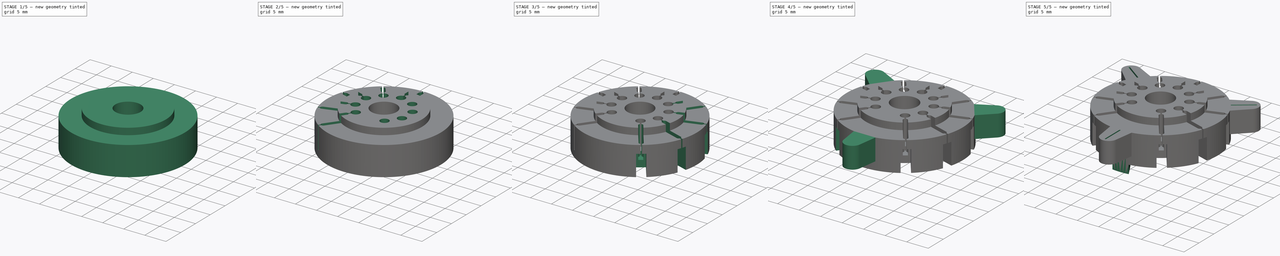
[diagram: build sequence overview — one tinted view per stage of 5, left to right]
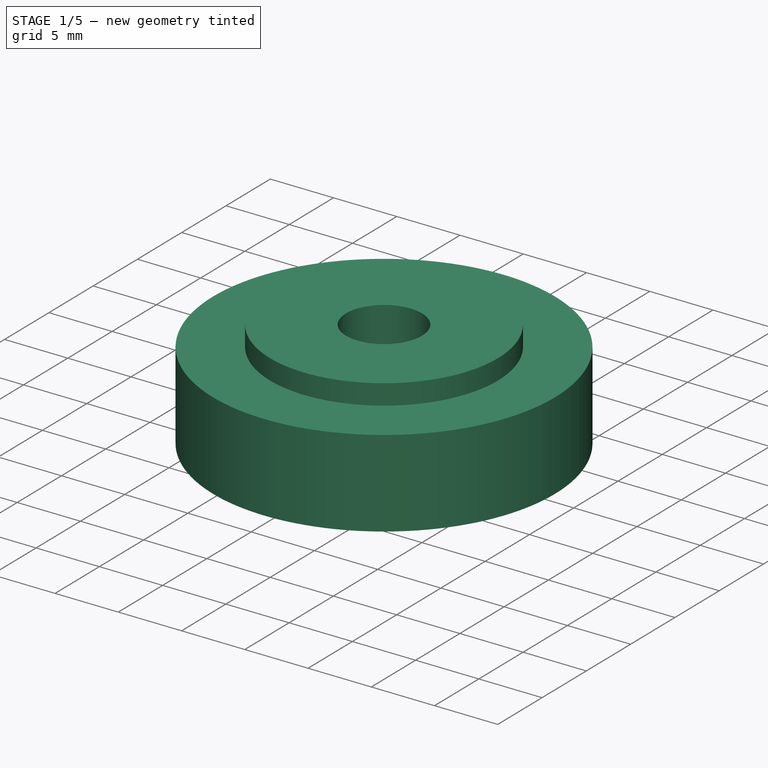
[diagram: stage 1 of 5 — iso view after this stage's code; geometry added in this stage tinted green]
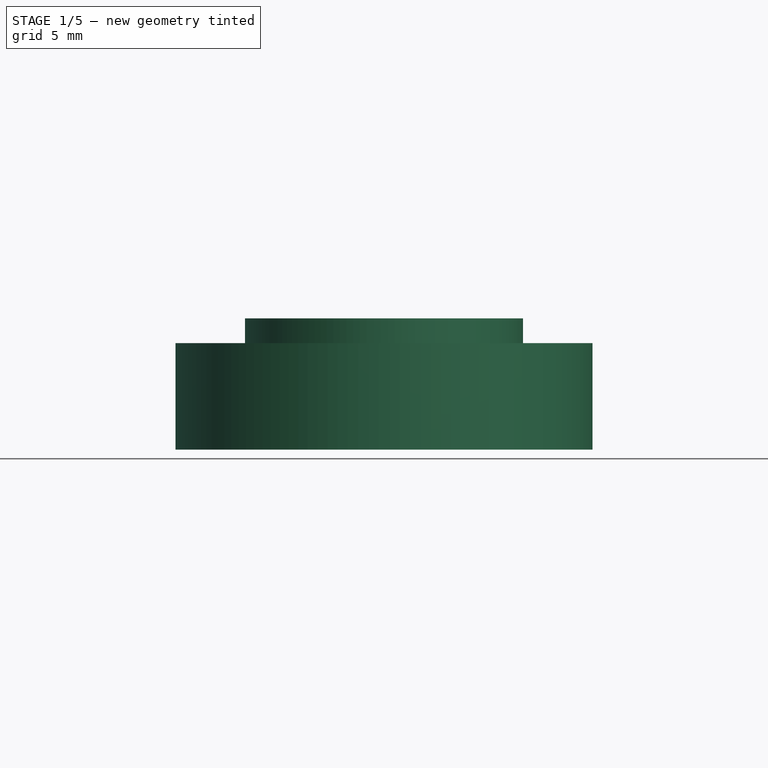
[diagram: stage 1 of 5 — front view after this stage's code; geometry added in this stage tinted green]
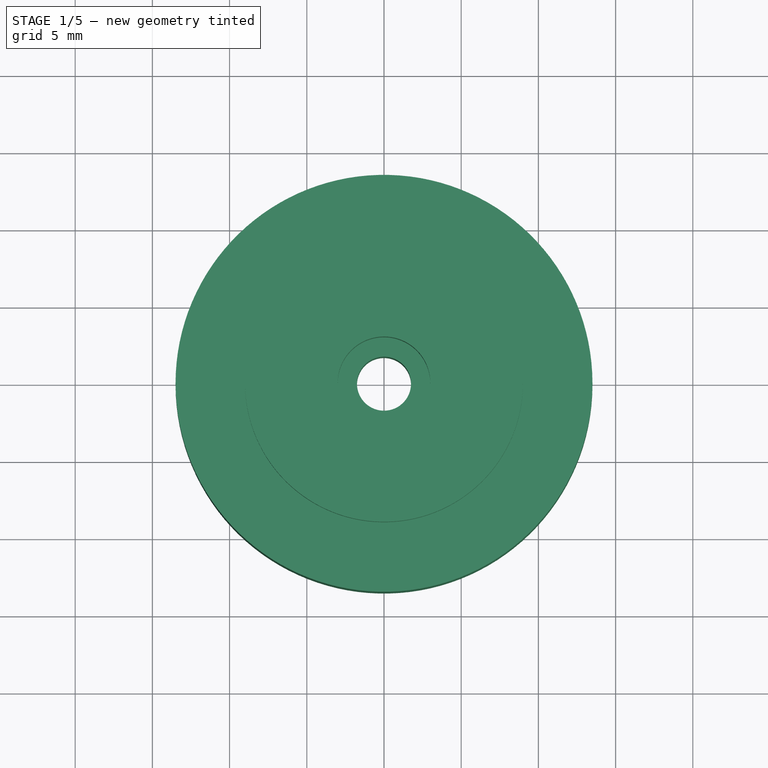
[diagram: stage 1 of 5 — top view after this stage's code; geometry added in this stage tinted green]
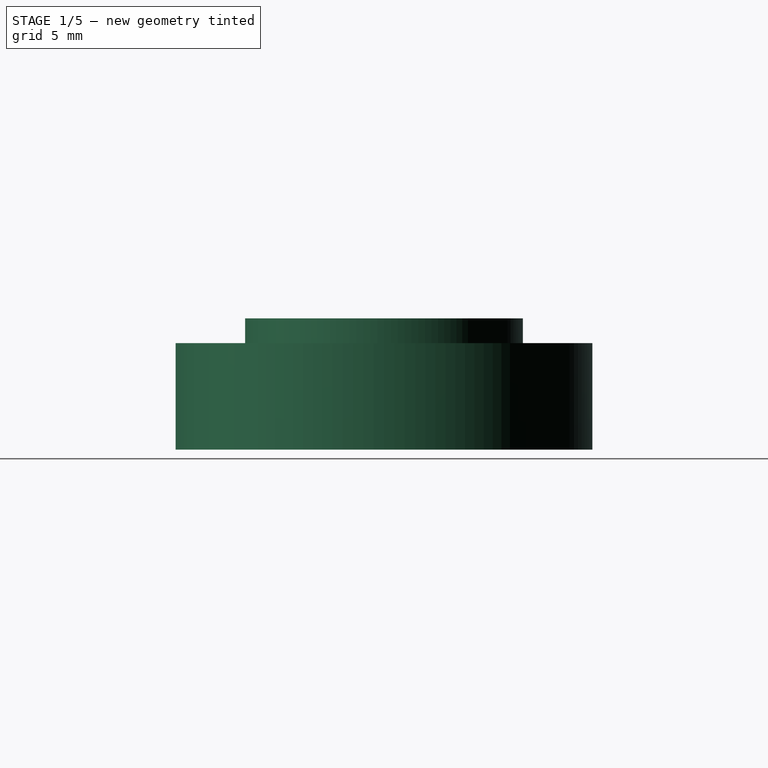
[diagram: stage 1 of 5 — right view after this stage's code; geometry added in this stage tinted green]
FCSTD DOCUMENT  (FreeCAD 0.19R24276 (Git))
Label: VT9-RT-2
License: All rights reserved
LicenseURL: http://en.wikipedia.org/wiki/All_rights_reserved
objects: Sketcher::SketchObject×11, PartDesign::PolarPattern×8, PartDesign::Pocket×7, PartDesign::Pad×4, PartDesign::Body×1
note: 42 computed .brp shape members not serialized (recipe doc carries the construction recipe); baked Part::Feature solids carry a one-line shape summary decoded from their .brp

FEATURE [Sketcher::SketchObject] Sketch
  FullyConstrained = true
  MapMode = 5
  Support = -> [XY_Plane]
  sketch-geometry (1):
    g0: Circle CenterX=0 CenterY=0 CenterZ=0 NormalX=0 NormalY=0 NormalZ=1 AngleXU=0 Radius=9
  constraints (2):
    c: Coincident(g0,g-1)
    c: Radius(g0) = 9
FEATURE [PartDesign::Pad] Pad
  Direction = (1,1,1)
  Length = 1.6
  Length2 = 99.9998
  Profile = -> Sketch
  Refine = true
  Type = 0
FEATURE [Sketcher::SketchObject] Sketch001
  FullyConstrained = true
  MapMode = 5
  Placement = pos=(0,0,0) rot=(1,0,0;3.14159rad)
  Support = -> [Pad]
  sketch-geometry (1):
    g0: Circle CenterX=0 CenterY=0 CenterZ=0 NormalX=0 NormalY=0 NormalZ=1 AngleXU=0 Radius=13.5
  constraints (2):
    c: Coincident(g0,g-1)
    c: Radius(g0) = 13.5
FEATURE [PartDesign::Pad] Pad001
  BaseFeature = -> Pad
  Direction = (1,1,1)
  Length = 6.9
  Length2 = 99.9998
  Profile = -> Sketch001
  Refine = true
  Type = 0
FEATURE [Sketcher::SketchObject] Sketch002
  FullyConstrained = true
  MapMode = 5
  Placement = pos=(0,0,1.6) rot=(0,0,1;0rad)
  Support = -> [Pad001]
  sketch-geometry (1):
    g0: Circle CenterX=0 CenterY=0 CenterZ=0 NormalX=0 NormalY=0 NormalZ=1 AngleXU=0 Radius=3
  constraints (2):
    c: Coincident(g0,g-1)
    c: Radius(g0) = 3
FEATURE [PartDesign::Pocket] Pocket
  BaseFeature = -> Pad001
  Length = 3
  Length2 = 99.9998
  Profile = -> Sketch002
  Refine = true
  Type = 0
FEATURE [Sketcher::SketchObject] Sketch003
  FullyConstrained = true
  MapMode = 5
  Support = -> [XY_Plane]
  sketch-geometry (1):
    g0: Circle CenterX=0 CenterY=0 CenterZ=0 NormalX=0 NormalY=0 NormalZ=1 AngleXU=0 Radius=1.75
  constraints (2):
    c: Coincident(g0,g-1)
    c: Radius(g0) = 1.75
FEATURE [PartDesign::Pocket] Pocket001
  BaseFeature = -> Pocket
  Length = 5.0038
  Length2 = 99.9998
  Profile = -> Sketch003
  Refine = true
  Type = 1
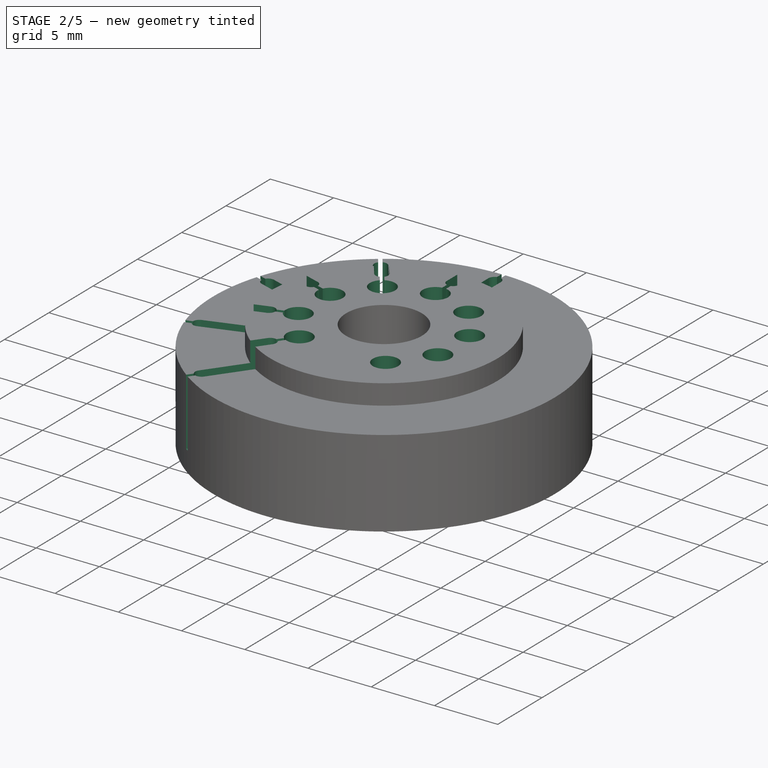
[diagram: stage 2 of 5 — iso view after this stage's code; geometry added in this stage tinted green]
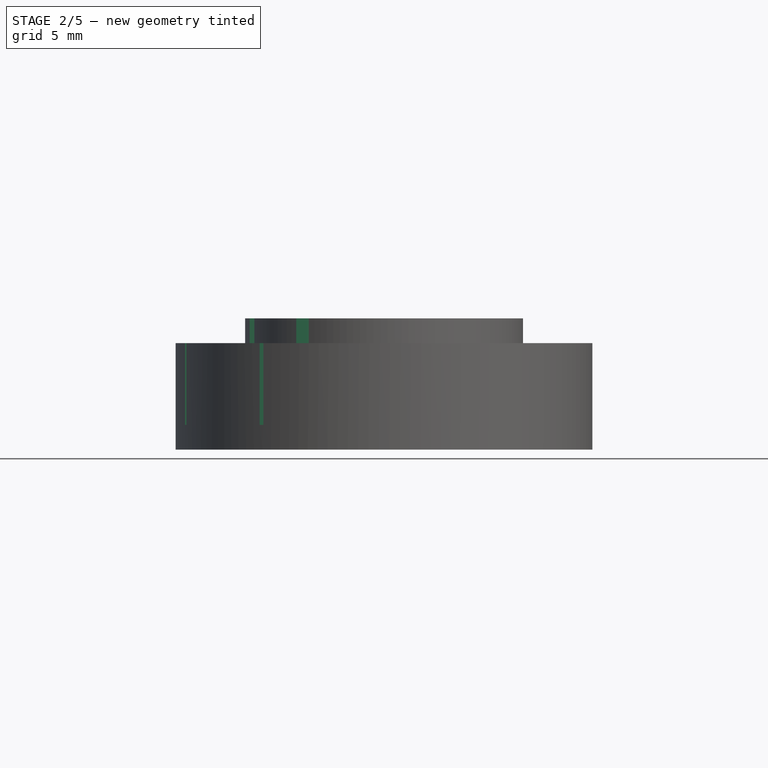
[diagram: stage 2 of 5 — front view after this stage's code; geometry added in this stage tinted green]
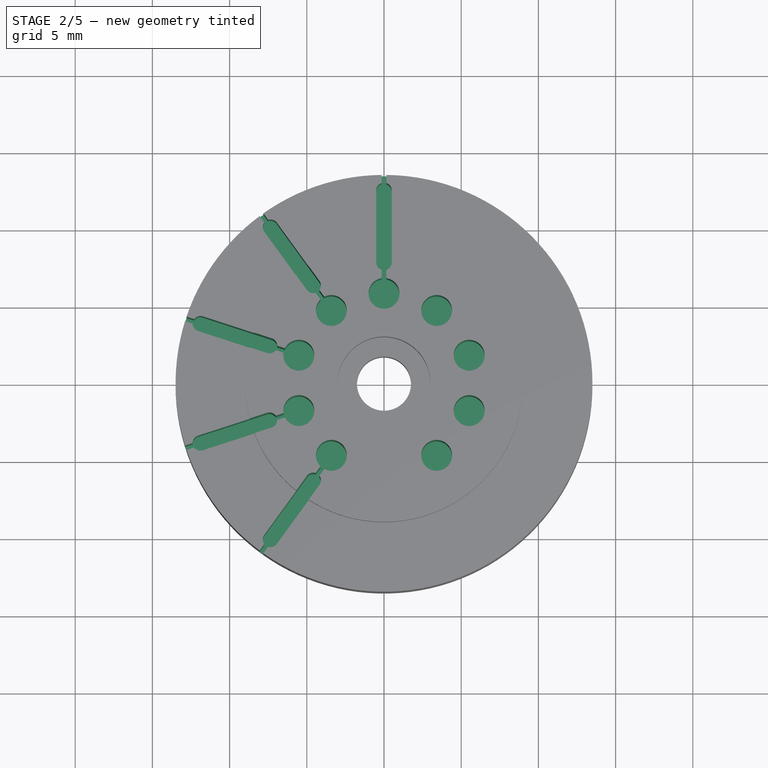
[diagram: stage 2 of 5 — top view after this stage's code; geometry added in this stage tinted green]
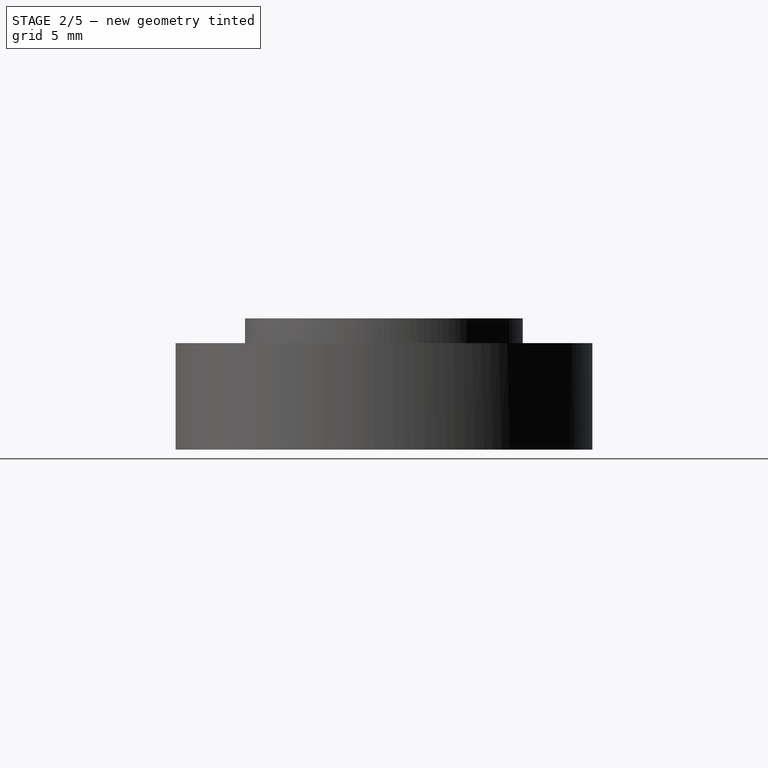
[diagram: stage 2 of 5 — right view after this stage's code; geometry added in this stage tinted green]
FEATURE [Sketcher::SketchObject] Sketch004
  FullyConstrained = true
  MapMode = 5
  Placement = pos=(0,0,-6.9) rot=(1,0,0;3.14159rad)
  Support = -> [Pocket001]
  sketch-geometry (1):
    g0: Circle CenterX=0 CenterY=0 CenterZ=0 NormalX=0 NormalY=0 NormalZ=1 AngleXU=0 Radius=3
  constraints (2):
    c: Coincident(g0,g-1)
    c: Radius(g0) = 3
FEATURE [PartDesign::Pocket] Pocket002
  BaseFeature = -> Pocket001
  Length = 1.6
  Length2 = 99.9998
  Profile = -> Sketch004
  Refine = true
  Type = 0
FEATURE [Sketcher::SketchObject] Sketch005
  FullyConstrained = true
  MapMode = 5
  Placement = pos=(0,0,1.6) rot=(0,0,1;0rad)
  Support = -> [Pad001]
  sketch-geometry (27):
    g0: Circle CenterX=0 CenterY=0 CenterZ=0 NormalX=0 NormalY=0 NormalZ=1 AngleXU=0 Radius=5.8
    g1: LineSegment StartX=0 StartY=0 StartZ=0 EndX=-3.40915 EndY=-4.6923 EndZ=0
    g2: LineSegment StartX=0 StartY=0 StartZ=0 EndX=-5.51613 EndY=-1.7923 EndZ=0
    g3: LineSegment StartX=-3.40915 StartY=-4.6923 StartZ=0 EndX=3.40915 EndY=-4.6923 EndZ=0
    g4: LineSegment StartX=3.40915 StartY=-4.6923 StartZ=0 EndX=5.51613 EndY=1.7923 EndZ=0
    g5: LineSegment StartX=5.51613 StartY=1.7923 StartZ=0 EndX=1.8e-15 EndY=5.8 EndZ=0
    g6: LineSegment StartX=1.8e-15 StartY=5.8 StartZ=0 EndX=-5.51613 EndY=1.7923 EndZ=0
    g7: LineSegment StartX=-5.51613 StartY=1.7923 StartZ=0 EndX=-3.40915 EndY=-4.6923 EndZ=0
    g8: Circle CenterX=0 CenterY=0 CenterZ=0 NormalX=0 NormalY=0 NormalZ=1 AngleXU=0 Radius=5.8
    g9: LineSegment StartX=-5.51613 StartY=-1.7923 StartZ=0 EndX=-2.7e-15 EndY=-5.8 EndZ=0
    g10: LineSegment StartX=-2.7e-15 StartY=-5.8 StartZ=0 EndX=5.51613 EndY=-1.7923 EndZ=0
    g11: LineSegment StartX=5.51613 StartY=-1.7923 StartZ=0 EndX=3.40915 EndY=4.6923 EndZ=0
    g12: LineSegment StartX=3.40915 StartY=4.6923 StartZ=0 EndX=-3.40915 EndY=4.6923 EndZ=0
    g13: LineSegment StartX=-3.40915 StartY=4.6923 StartZ=0 EndX=-5.51613 EndY=-1.7923 EndZ=0
    g14: Circle CenterX=0 CenterY=0 CenterZ=0 NormalX=0 NormalY=0 NormalZ=1 AngleXU=0 Radius=5.8
    g15: Circle CenterX=-3.40915 CenterY=-4.6923 CenterZ=0 NormalX=0 NormalY=0 NormalZ=1 AngleXU=0 Radius=1
    g16: Circle CenterX=-5.51613 CenterY=-1.7923 CenterZ=0 NormalX=0 NormalY=0 NormalZ=1 AngleXU=0 Radius=1
    g17: Circle CenterX=-5.51613 CenterY=1.7923 CenterZ=0 NormalX=0 NormalY=0 NormalZ=1 AngleXU=0 Radius=1
    g18: Circle CenterX=-3.40915 CenterY=4.6923 CenterZ=0 NormalX=0 NormalY=0 NormalZ=1 AngleXU=0 Radius=1
    g19: Circle CenterX=1.8e-15 CenterY=5.8 CenterZ=0 NormalX=0 NormalY=0 NormalZ=1 AngleXU=0 Radius=1
    g20: Circle CenterX=3.40915 CenterY=4.6923 CenterZ=0 NormalX=0 NormalY=0 NormalZ=1 AngleXU=0 Radius=1
    g21: Circle CenterX=5.51613 CenterY=1.7923 CenterZ=0 NormalX=0 NormalY=0 NormalZ=1 AngleXU=0 Radius=1
    g22: Circle CenterX=5.51613 CenterY=-1.7923 CenterZ=0 NormalX=0 NormalY=0 NormalZ=1 AngleXU=0 Radius=1
    g23: Circle CenterX=3.40915 CenterY=-4.6923 CenterZ=0 NormalX=0 NormalY=0 NormalZ=1 AngleXU=0 Radius=1
    g24: Circle CenterX=0 CenterY=0 CenterZ=0 NormalX=0 NormalY=0 NormalZ=1 AngleXU=0 Radius=13.5
    g25: LineSegment StartX=-3.40915 StartY=-4.6923 StartZ=0 EndX=-7.9351 EndY=-10.9217 EndZ=0
    g26: Circle CenterX=0 CenterY=0 CenterZ=0 NormalX=0 NormalY=0 NormalZ=1 AngleXU=0 Radius=13
  constraints (59):
    c: Coincident(g0,g-1)
    c: Radius(g0) = 5.8
    c: Coincident(g1,g-1)
    c: PointOnObject(g1,g0)
    c: Angle(g-2,g1) = 2.51327
    c: Coincident(g2,g-1)
    c: PointOnObject(g2,g0)
    c: Angle(g2,g1) = 0.628319
    c: Coincident(g3,g4)
    c: Coincident(g4,g5)
    c: Coincident(g5,g6)
    c: Coincident(g6,g7)
    c: Coincident(g7,g3)
    c: Equal(g3, g4-g7) x4
    c: PointOnObject(g3,g8)
    c: PointOnObject(g4,g8)
    c: PointOnObject(g5,g8)
    c: PointOnObject(g6,g8)
    c: PointOnObject(g7,g8)
    c: Coincident(g8,g-1)
    c: Coincident(g7,g1)
    c: Coincident(g9,g10)
    c: Coincident(g10,g11)
    c: Coincident(g11,g12)
    c: Coincident(g12,g13)
    c: Coincident(g13,g9)
    c: Equal(g9, g10-g13) x4
    c: PointOnObject(g9,g14)
    c: PointOnObject(g10,g14)
    c: PointOnObject(g11,g14)
    c: PointOnObject(g12,g14)
    c: PointOnObject(g13,g14)
    c: Coincident(g14,g-1)
    c: Coincident(g13,g2)
    c: Coincident(g15,g1)
    c: Radius(g15) = 1
    c: Equal(g15,g16) = 2
    c: Coincident(g16,g2)
    c: Equal(g15,g17) = 2
    c: Coincident(g17,g6)
    c: Equal(g15,g18) = 2
    c: Coincident(g18,g12)
    c: Equal(g15,g19) = 2
    c: Coincident(g19,g5)
    c: Equal(g15,g20) = 2
    c: Coincident(g20,g11)
    c: Equal(g15,g21) = 2
    c: Coincident(g21,g4)
    c: Equal(g15,g22) = 2
    c: Coincident(g22,g10)
    c: Equal(g15,g23) = 2
    c: Coincident(g23,g3)
    c: Coincident(g24,g-1)
    c: Radius(g24) = 13.5
    c: Coincident(g25,g15)
    c: PointOnObject(g25,g24)
    c: Parallel(g25,g1)
    c: Coincident(g26,g-1)
    c: Radius(g26) = 13
FEATURE [PartDesign::Pocket] Pocket003
  BaseFeature = -> Pocket002
  Length = 6
  Length2 = 100
  Profile = -> Sketch005
  Refine = true
  Type = 0
FEATURE [Sketcher::SketchObject] Sketch006
  FullyConstrained = false
  MapMode = 5
  Placement = pos=(0,0,1.6) rot=(0,0,1;0rad)
  Support = -> [Pocket003]
  sketch-geometry (14):
    g0: ArcOfCircle CenterX=0 CenterY=0 CenterZ=0 NormalX=0 NormalY=0 NormalZ=1 AngleXU=0 Radius=13.5 StartAngle=1.55968 EndAngle=1.58191
    g1: LineSegment StartX=0 StartY=0 StartZ=0 EndX=0 EndY=13.5 EndZ=0
    g2: LineSegment StartX=-0.15 StartY=6.78869 StartZ=0 EndX=-0.15 EndY=7.32303 EndZ=0
    g3: LineSegment StartX=0.15 StartY=6.78869 StartZ=0 EndX=0.15 EndY=7.32303 EndZ=0
    g4: ArcOfCircle CenterX=0 CenterY=12.5 CenterZ=0 NormalX=0 NormalY=0 NormalZ=1 AngleXU=0 Radius=0.5 StartAngle=-1.8e-15 EndAngle=1.2661
    g5: ArcOfCircle CenterX=0 CenterY=7.8 CenterZ=0 NormalX=0 NormalY=0 NormalZ=1 AngleXU=0 Radius=0.5 StartAngle=3.14159 EndAngle=4.4077
    g6: LineSegment StartX=-0.5 StartY=12.5 StartZ=0 EndX=-0.5 EndY=7.8 EndZ=0
    g7: LineSegment StartX=0.5 StartY=12.5 StartZ=0 EndX=0.5 EndY=7.8 EndZ=0
    g8: LineSegment StartX=0 StartY=0 StartZ=0 EndX=0 EndY=5.8 EndZ=0
    g9: ArcOfCircle CenterX=0 CenterY=5.8 CenterZ=0 NormalX=0 NormalY=0 NormalZ=1 AngleXU=0 Radius=1 StartAngle=1.42023 EndAngle=1.72136
    g10: ArcOfCircle CenterX=0 CenterY=7.8 CenterZ=0 NormalX=0 NormalY=0 NormalZ=1 AngleXU=0 Radius=0.5 StartAngle=5.01708 EndAngle=6.28319
    g11: LineSegment StartX=0.15 StartY=12.977 StartZ=0 EndX=0.15 EndY=13.4992 EndZ=0
    g12: LineSegment StartX=-0.15 StartY=12.977 StartZ=0 EndX=-0.15 EndY=13.4992 EndZ=0
    g13: ArcOfCircle CenterX=0 CenterY=12.5 CenterZ=0 NormalX=0 NormalY=0 NormalZ=1 AngleXU=0 Radius=0.5 StartAngle=1.87549 EndAngle=3.14159
  constraints (36):
    c: Coincident(g0,g-1)
    c: Radius(g0) = 13.5
    c: Coincident(g1,g0)
    c: PointOnObject(g1,g0)
    c: Vertical(g1)
    c: Vertical(g2)
    c: Vertical(g3)
    c: Tangent(g4,g7) = 1.5708
    c: Coincident(g13,g6) = -1.5708
    c: Tangent(g6,g5) = -1.5708
    c: Coincident(g7,g10) = 1.5708
    c: Vertical(g6)
    c: Equal(g4,g5)
    c: PointOnObject(g4,g1)
    c: DistanceX(g5,g10) = 1
    c: DistanceY(g4,g1) = 1
    c: Coincident(g8,g0)
    c: Distance(g8,g0) = 5.8
    c: Coincident(g9,g8)
    c: Radius(g9) = 1
    c: Parallel(g8,g1)
    c: DistanceY(g9,g5) = 2
    c: Coincident(g9,g3)
    c: Coincident(g9,g2)
    c: Equal(g5,g10)
    c: Coincident(g5,g10)
    c: Coincident(g3,g10)
    c: Tangent(g3,g11)
    c: Coincident(g2,g5)
    c: Tangent(g2,g12)
    c: Coincident(g0,g11)
    c: Coincident(g0,g12)
    c: Equal(g4,g13)
    c: Coincident(g13,g12)
    c: Coincident(g4,g13)
    c: Coincident(g4,g11)
FEATURE [PartDesign::Pocket] Pocket004
  BaseFeature = -> Pocket003
  Length = 6.9
  Length2 = 100
  Profile = -> Sketch006
  Refine = true
  Type = 0
FEATURE [PartDesign::PolarPattern] PolarPattern
  Angle = 144
  Axis = -> Sketch006 [N_Axis]
  BaseFeature = -> Pocket004
  Occurrences = 5
  Originals = -> [Pocket004]
  Refine = true
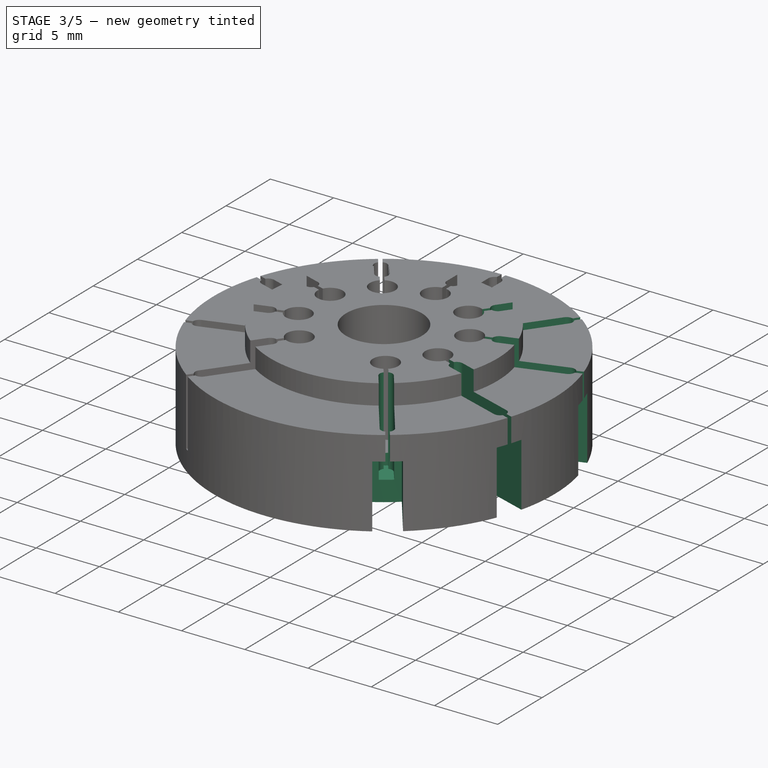
[diagram: stage 3 of 5 — iso view after this stage's code; geometry added in this stage tinted green]
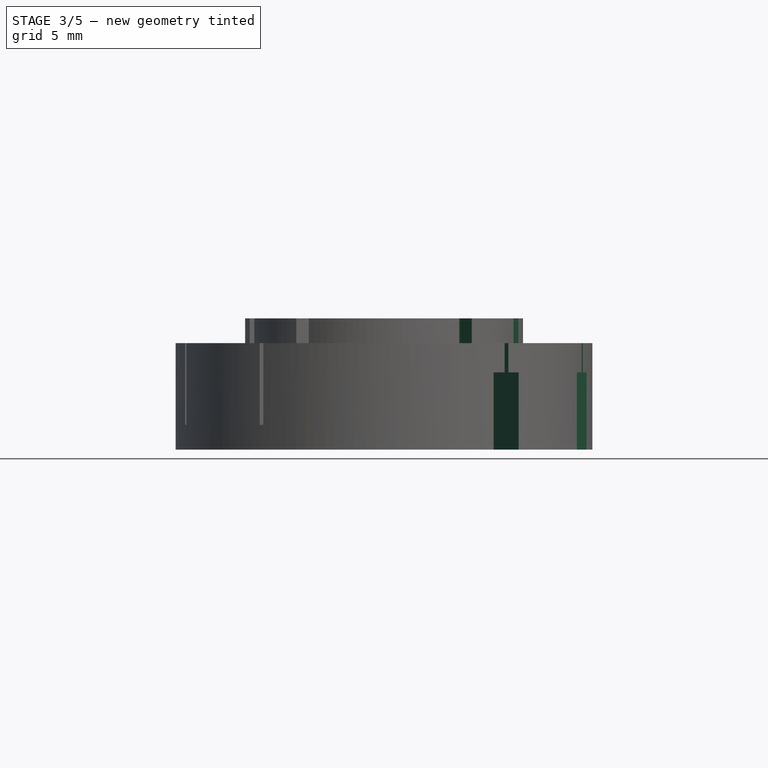
[diagram: stage 3 of 5 — front view after this stage's code; geometry added in this stage tinted green]
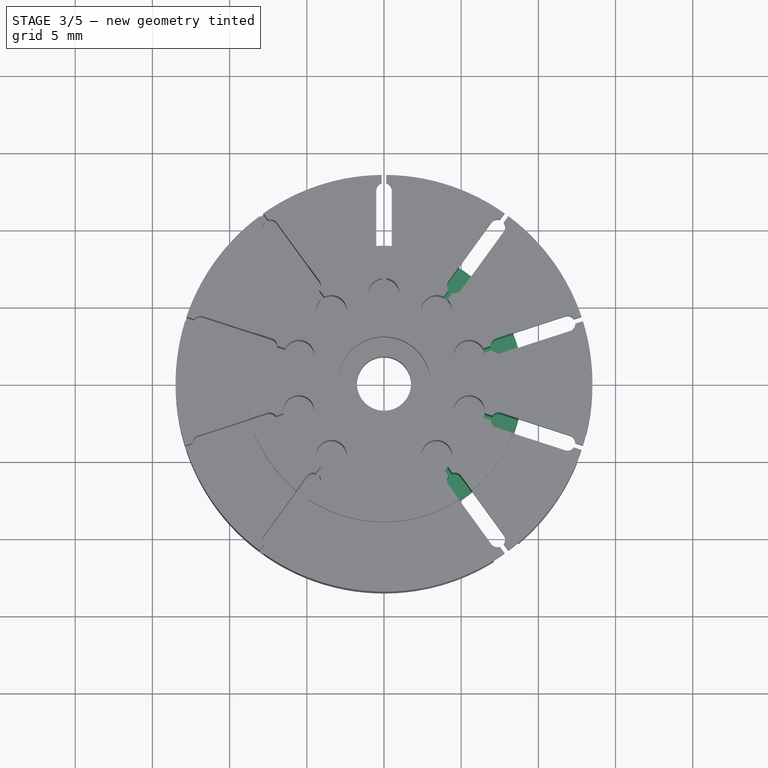
[diagram: stage 3 of 5 — top view after this stage's code; geometry added in this stage tinted green]
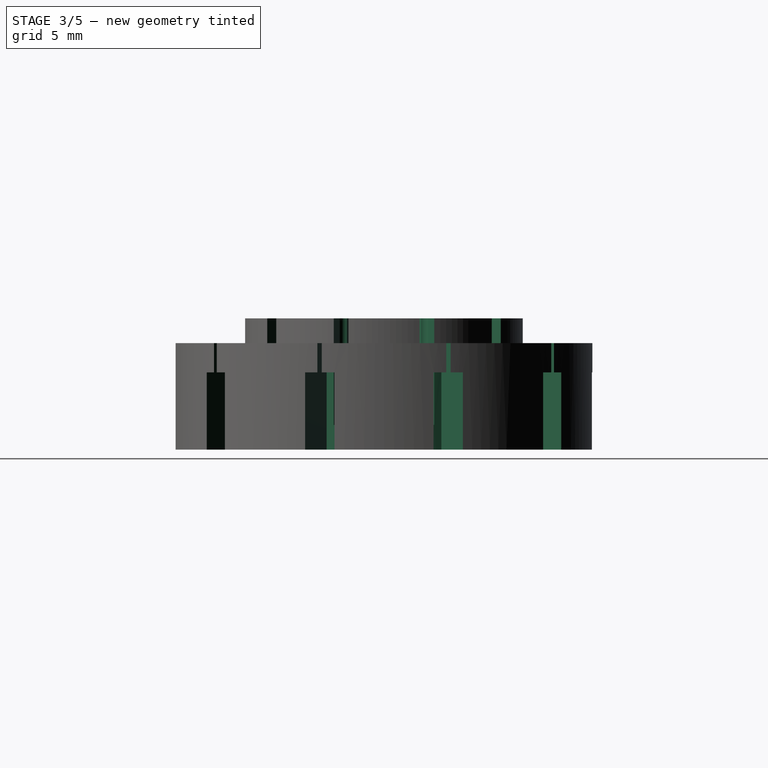
[diagram: stage 3 of 5 — right view after this stage's code; geometry added in this stage tinted green]
FEATURE [PartDesign::PolarPattern] PolarPattern001
  Angle = 144
  Axis = -> Sketch006 [N_Axis]
  BaseFeature = -> PolarPattern
  Occurrences = 5
  Originals = -> [Pocket004]
  Refine = true
  Reversed = true
FEATURE [Sketcher::SketchObject] Sketch007
  FullyConstrained = false
  MapMode = 5
  Placement = pos=(0,0,-6.9) rot=(1,0,0;3.14159rad)
  Support = -> [PolarPattern001]
  sketch-geometry (5):
    g0: ArcOfCircle CenterX=0 CenterY=0 CenterZ=0 NormalX=0 NormalY=0 NormalZ=1 AngleXU=0 Radius=9 StartAngle=4.60105 EndAngle=4.82373
    g1: LineSegment StartX=0 StartY=0 StartZ=0 EndX=0 EndY=-16.5272 EndZ=0
    g2: LineSegment StartX=-1 StartY=-8.94427 StartZ=0 EndX=-1 EndY=-13.4629 EndZ=0
    g3: LineSegment StartX=1 StartY=-8.94427 StartZ=0 EndX=1 EndY=-13.4629 EndZ=0
    g4: ArcOfCircle CenterX=0 CenterY=0 CenterZ=0 NormalX=0 NormalY=0 NormalZ=1 AngleXU=0 Radius=13.5 StartAngle=4.63825 EndAngle=4.78653
  constraints (12):
    c: Coincident(g0,g-1)
    c: Radius(g0) = 9
    c: Coincident(g1,g0)
    c: PointOnObject(g1,g-2)
    c: Vertical(g2)
    c: Vertical(g3)
    c: Coincident(g4,g0)
    c: Radius(g4) = 13.5
    c: Coincident(g0,g2)
    c: Coincident(g0,g3)
    c: Coincident(g4,g2)
    c: Coincident(g4,g3)
FEATURE [PartDesign::Pocket] Pocket005
  BaseFeature = -> PolarPattern001
  Length = 5
  Length2 = 100
  Profile = -> Sketch007
  Refine = true
  Type = 0
FEATURE [PartDesign::PolarPattern] PolarPattern002
  Angle = 144
  Axis = -> Sketch007 [N_Axis]
  BaseFeature = -> Pocket005
  Occurrences = 5
  Originals = -> [Pocket005]
  Refine = true
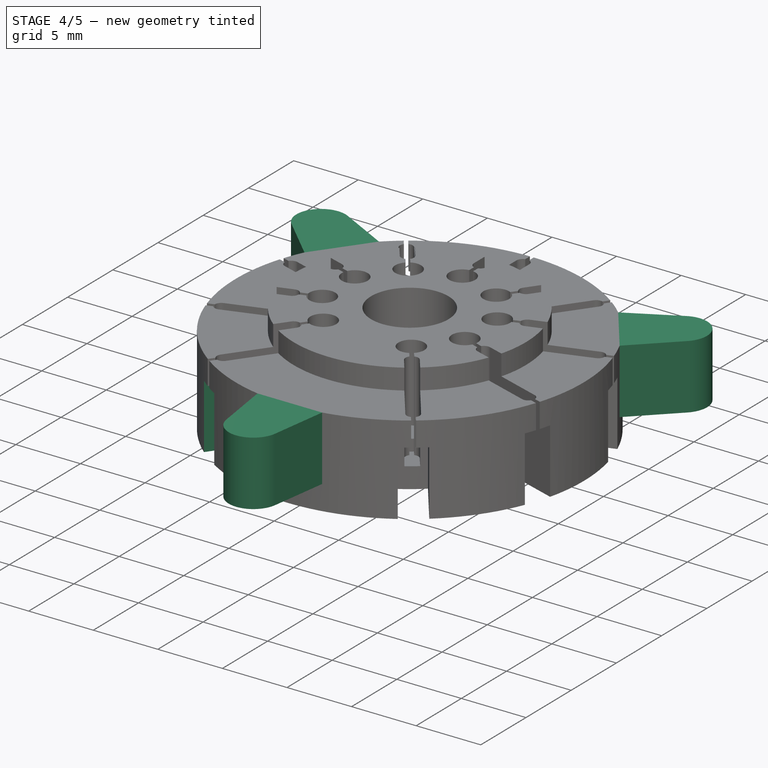
[diagram: stage 4 of 5 — iso view after this stage's code; geometry added in this stage tinted green]
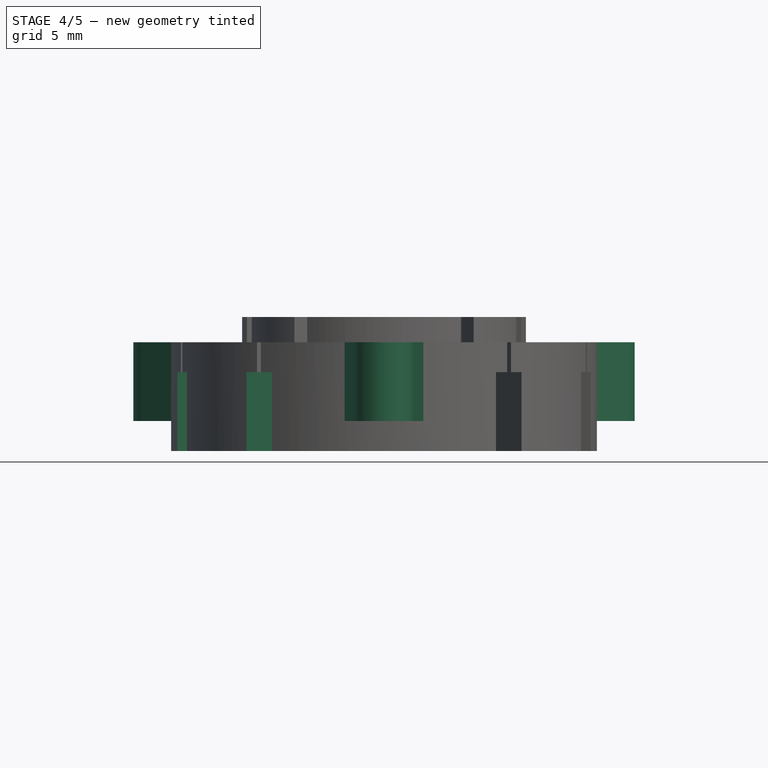
[diagram: stage 4 of 5 — front view after this stage's code; geometry added in this stage tinted green]
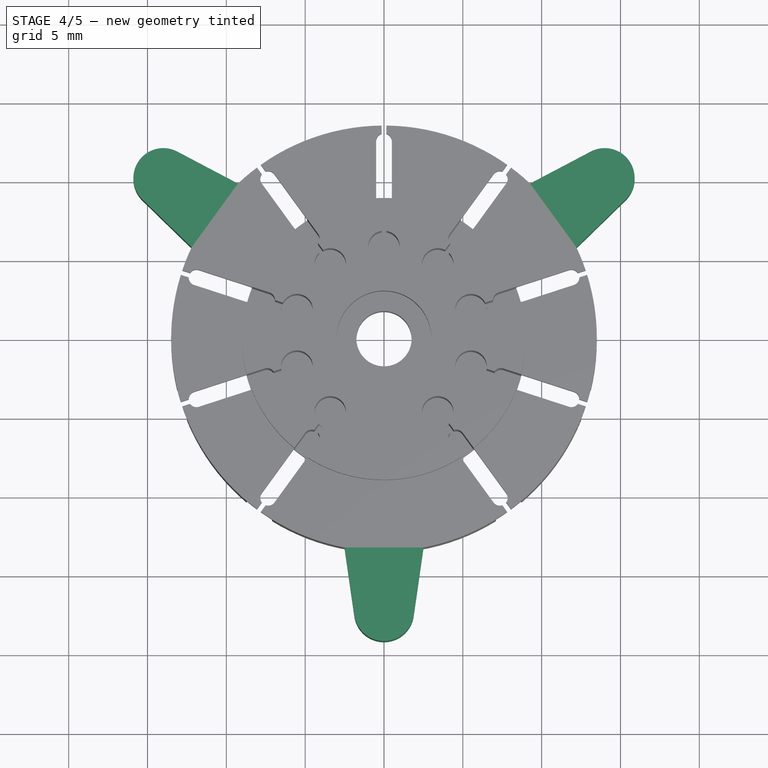
[diagram: stage 4 of 5 — top view after this stage's code; geometry added in this stage tinted green]
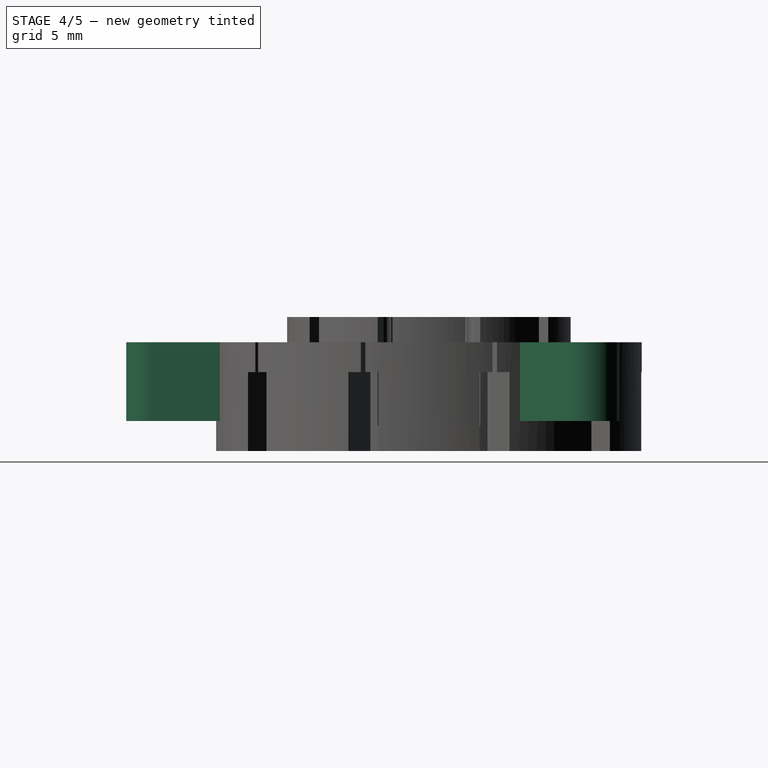
[diagram: stage 4 of 5 — right view after this stage's code; geometry added in this stage tinted green]
FEATURE [PartDesign::PolarPattern] PolarPattern003
  Angle = 144
  Axis = -> Sketch007 [N_Axis]
  BaseFeature = -> PolarPattern002
  Occurrences = 5
  Originals = -> [Pocket005]
  Refine = true
  Reversed = true
FEATURE [Sketcher::SketchObject] Sketch008
  FullyConstrained = true
  MapMode = 5
  Support = -> [PolarPattern003]
  sketch-geometry (5):
    g0: LineSegment StartX=0 StartY=0 StartZ=0 EndX=0 EndY=-17.3 EndZ=0
    g1: ArcOfCircle CenterX=0 CenterY=-17.3 CenterZ=0 NormalX=0 NormalY=0 NormalZ=1 AngleXU=0 Radius=1.9 StartAngle=3.28451 EndAngle=6.14026
    g2: ArcOfCircle CenterX=0 CenterY=0 CenterZ=0 NormalX=0 NormalY=0 NormalZ=1 AngleXU=0 Radius=13.5 StartAngle=4.52613 EndAngle=4.89865
    g3: LineSegment StartX=-1.88063 StartY=-17.5706 StartZ=0 EndX=-2.5 EndY=-13.2665 EndZ=0
    g4: LineSegment StartX=1.88063 StartY=-17.5706 StartZ=0 EndX=2.5 EndY=-13.2665 EndZ=0
  constraints (13):
    c: Coincident(g0,g-1)
    c: PointOnObject(g0,g-2)
    c: Distance(g0) = 17.3
    c: Coincident(g1,g0)
    c: Radius(g1) = 1.9
    c: Coincident(g2,g-1)
    c: Radius(g2) = 13.5
    c: Symmetric(g3,g4,g0)
    c: DistanceX(g3,g4) = 5
    c: Tangent(g1,g3) = 1.5708
    c: Tangent(g1,g4) = -1.5708
    c: Coincident(g2,g3)
    c: Coincident(g2,g4)
FEATURE [PartDesign::Pad] Pad002
  BaseFeature = -> PolarPattern003
  Direction = (1,1,1)
  Length = 5
  Length2 = 100
  Profile = -> Sketch008
  Refine = true
  Reversed = true
  Type = 0
FEATURE [PartDesign::PolarPattern] PolarPattern004
  Angle = 126
  Axis = -> Sketch008 [N_Axis]
  BaseFeature = -> Pad002
  Occurrences = 2
  Originals = -> [Pad002]
  Refine = true
FEATURE [PartDesign::PolarPattern] PolarPattern005
  Angle = 126
  Axis = -> Sketch008 [N_Axis]
  BaseFeature = -> PolarPattern004
  Occurrences = 2
  Originals = -> [Pad002]
  Refine = true
  Reversed = true
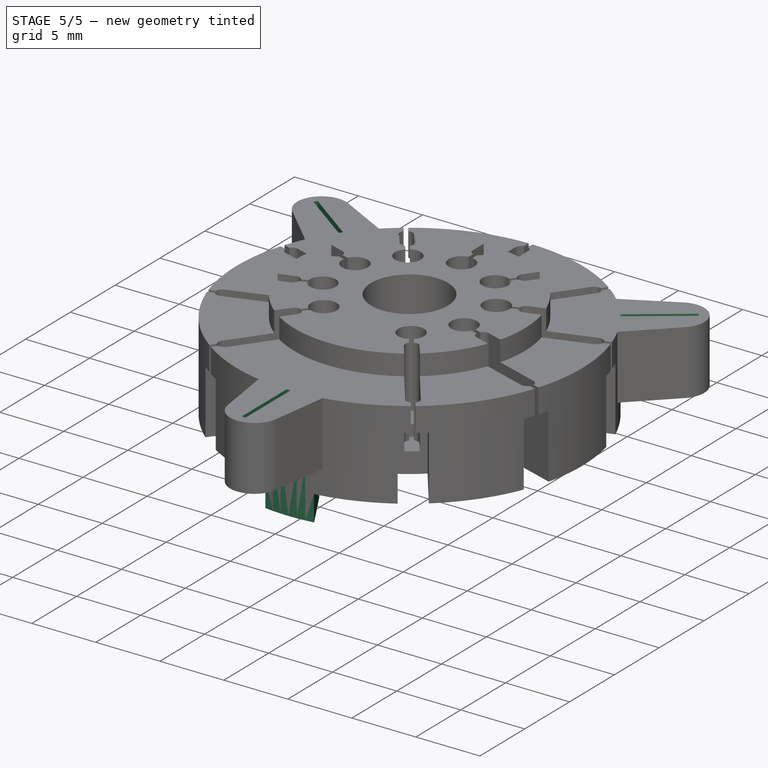
[diagram: stage 5 of 5 — iso view after this stage's code; geometry added in this stage tinted green]
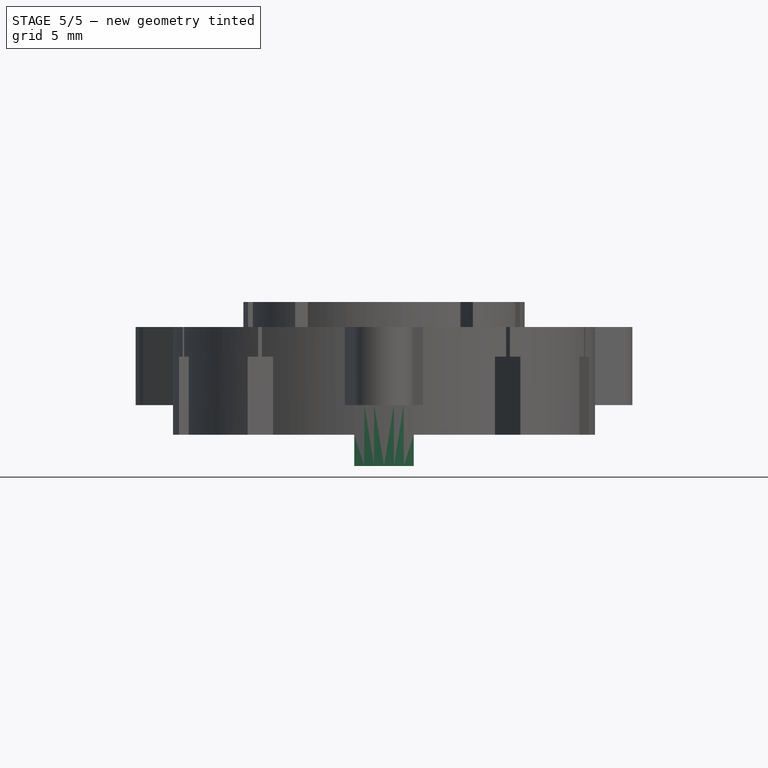
[diagram: stage 5 of 5 — front view after this stage's code; geometry added in this stage tinted green]
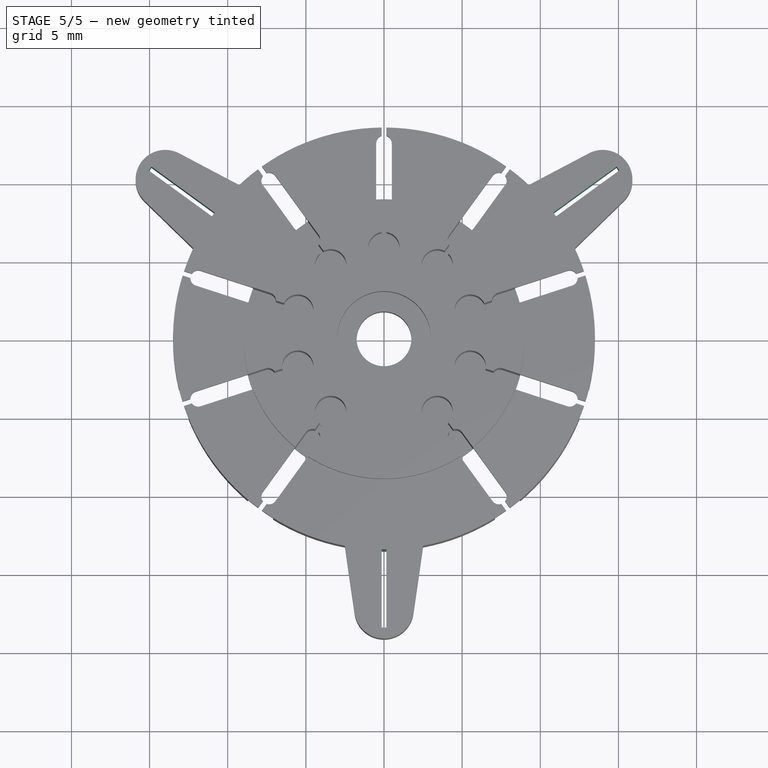
[diagram: stage 5 of 5 — top view after this stage's code; geometry added in this stage tinted green]
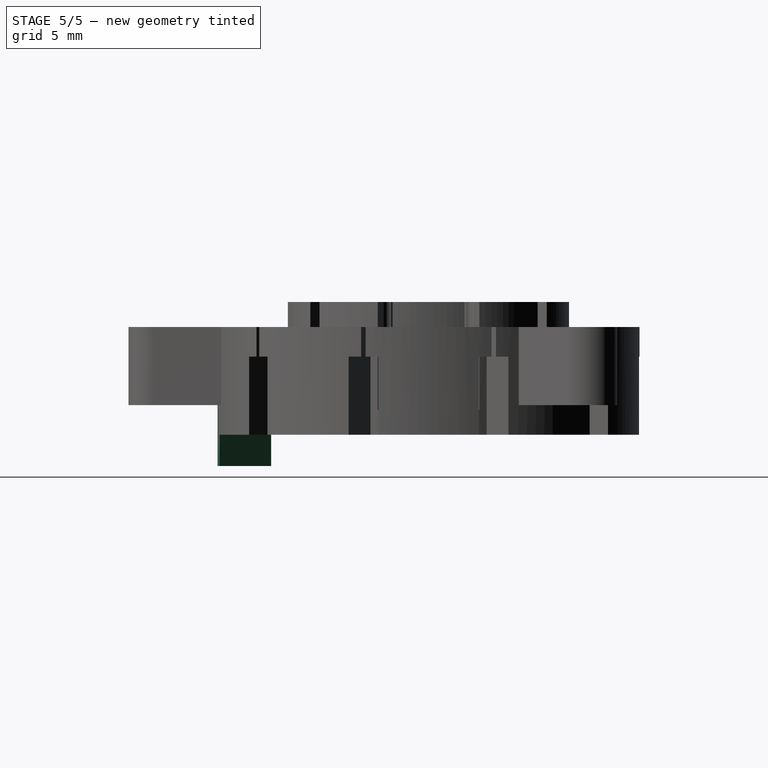
[diagram: stage 5 of 5 — right view after this stage's code; geometry added in this stage tinted green]
FEATURE [Sketcher::SketchObject] Sketch009
  FullyConstrained = false
  MapMode = 5
  Placement = pos=(0,0,-2e-16) rot=(0,0,1;0rad)
  Support = -> [PolarPattern005]
  sketch-geometry (5):
    g0: LineSegment StartX=0 StartY=0 StartZ=0 EndX=0 EndY=-20.9747 EndZ=0
    g1: LineSegment StartX=-0.15 StartY=-13.5 StartZ=0 EndX=0.15 EndY=-13.5 EndZ=0
    g2: LineSegment StartX=0.15 StartY=-13.5 StartZ=0 EndX=0.15 EndY=-18.5 EndZ=0
    g3: LineSegment StartX=0.15 StartY=-18.5 StartZ=0 EndX=-0.15 EndY=-18.5 EndZ=0
    g4: LineSegment StartX=-0.15 StartY=-18.5 StartZ=0 EndX=-0.15 EndY=-13.5 EndZ=0
  constraints (13):
    c: Coincident(g0,g-1)
    c: PointOnObject(g0,g-2)
    c: Coincident(g1,g2)
    c: Coincident(g2,g3)
    c: Coincident(g3,g4)
    c: Coincident(g4,g1)
    c: Horizontal(g1)
    c: Vertical(g2)
    c: Vertical(g4)
    c: Symmetric(g3,g2,g0)
    c: DistanceX(g3,g2) = 0.3
    c: DistanceY(g2,g1) = 5
    c: DistanceY(g1,g-1) = 13.5
FEATURE [PartDesign::Pocket] Pocket006
  BaseFeature = -> PolarPattern005
  Length = 5
  Length2 = 100
  Profile = -> Sketch009
  Refine = true
  Type = 1
FEATURE [PartDesign::PolarPattern] PolarPattern006
  Angle = 126
  Axis = -> Sketch009 [N_Axis]
  BaseFeature = -> Pocket006
  Occurrences = 2
  Originals = -> [Pocket006]
  Refine = true
FEATURE [PartDesign::PolarPattern] PolarPattern007
  Angle = 126
  Axis = -> Sketch009 [N_Axis]
  BaseFeature = -> PolarPattern006
  Occurrences = 2
  Originals = -> [Pocket006]
  Refine = true
  Reversed = true
FEATURE [Sketcher::SketchObject] Sketch010
  FullyConstrained = true
  MapMode = 5
  Placement = pos=(0,0,-6.9) rot=(1,0,0;3.14159rad)
  Support = -> [PolarPattern007]
  sketch-geometry (3):
    g0: ArcOfCircle CenterX=0 CenterY=0 CenterZ=0 NormalX=0 NormalY=0 NormalZ=1 AngleXU=0 Radius=13.5 StartAngle=1.42959 EndAngle=1.71201
    g1: LineSegment StartX=0 StartY=10.0747 StartZ=0 EndX=-1.9 EndY=13.3656 EndZ=0
    g2: LineSegment StartX=1.9 StartY=13.3656 StartZ=0 EndX=0 EndY=10.0747 EndZ=0
  constraints (9):
    c: Coincident(g0,g-1)
    c: Radius(g0) = 13.5
    c: PointOnObject(g1,g-2)
    c: Coincident(g2,g1)
    c: Symmetric(g1,g2,g-2)
    c: Distance(g1,g2) = 3.8
    c: Distance(g1,g1) = 3.8
    c: Coincident(g0,g2)
    c: Coincident(g0,g1)
FEATURE [PartDesign::Pad] Pad003
  BaseFeature = -> PolarPattern007
  Direction = (1,1,1)
  Length = 2
  Length2 = 100
  Profile = -> Sketch010
  Refine = true
  Type = 0
FEATURE [PartDesign::Body] Body
  Group = -> [Sketch,Pad,Sketch001,Pad001,Sketch002,Pocket,Sketch003,Pocket001,Sketch004,Pocket002,Sketch005,Pocket003,Sketch006,Pocket004,PolarPattern,PolarPattern001,Sketch007,Pocket005,PolarPattern002,PolarPattern003,Sketch008,Pad002,PolarPattern004,PolarPattern005,Sketch009,Pocket006,PolarPattern006,PolarPattern007,Sketch010,Pad003]
  Origin = -> Origin
  Tip = -> Pad003
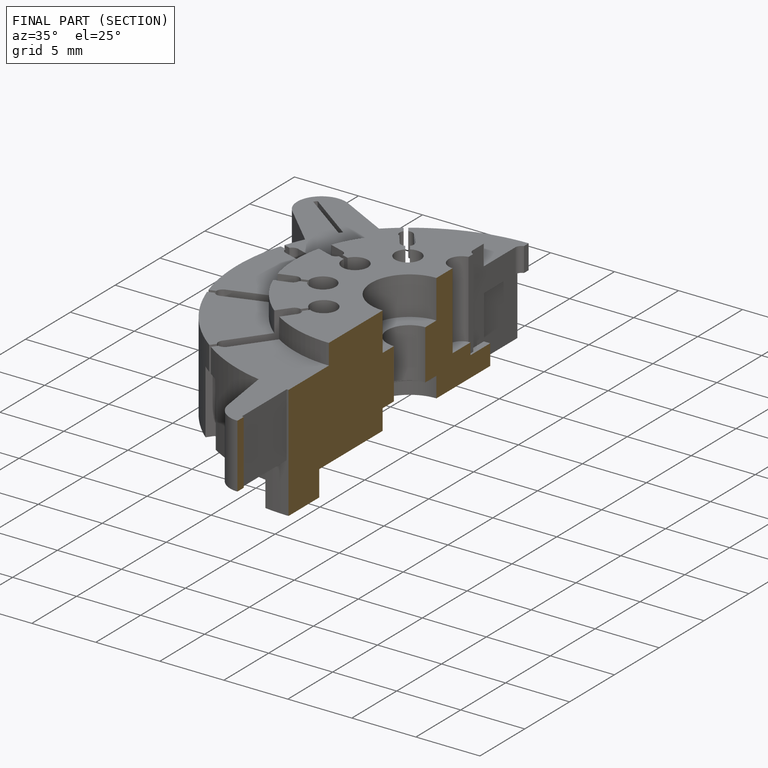
[diagram: finished part — half-section view (interior)]
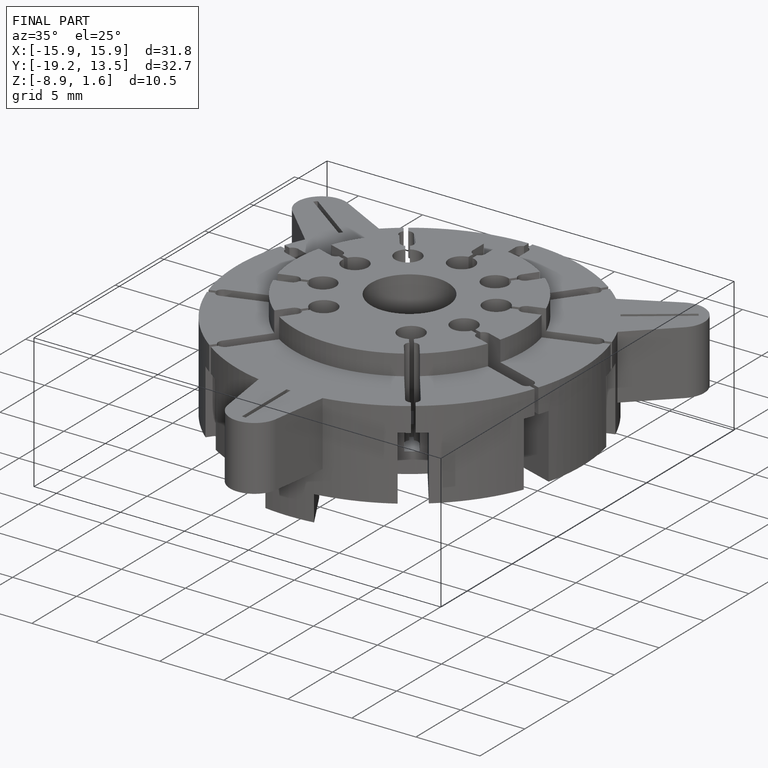
[diagram: finished part — iso view with bounding-box wireframe]
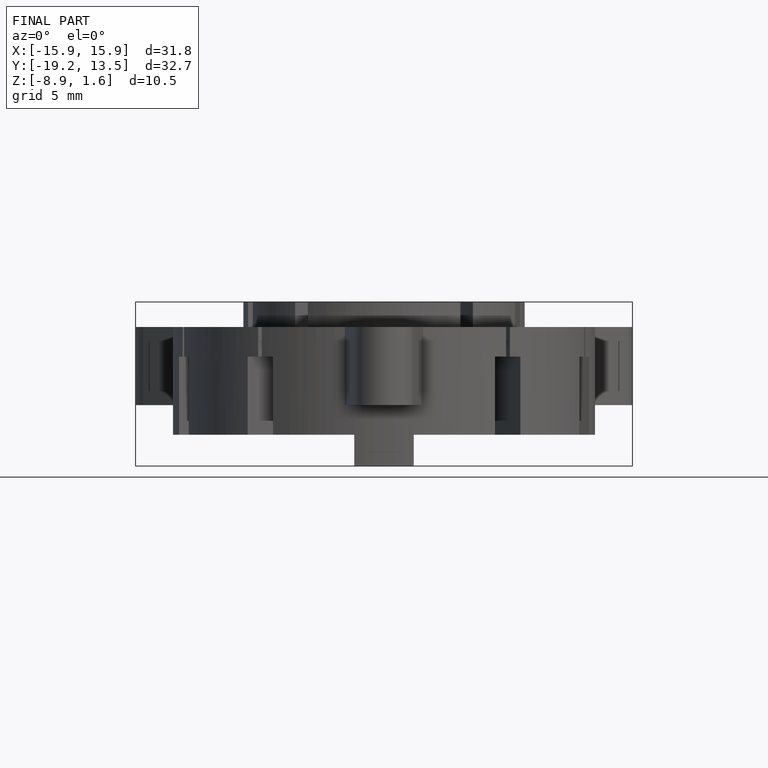
[diagram: finished part — front view with bounding-box wireframe]
